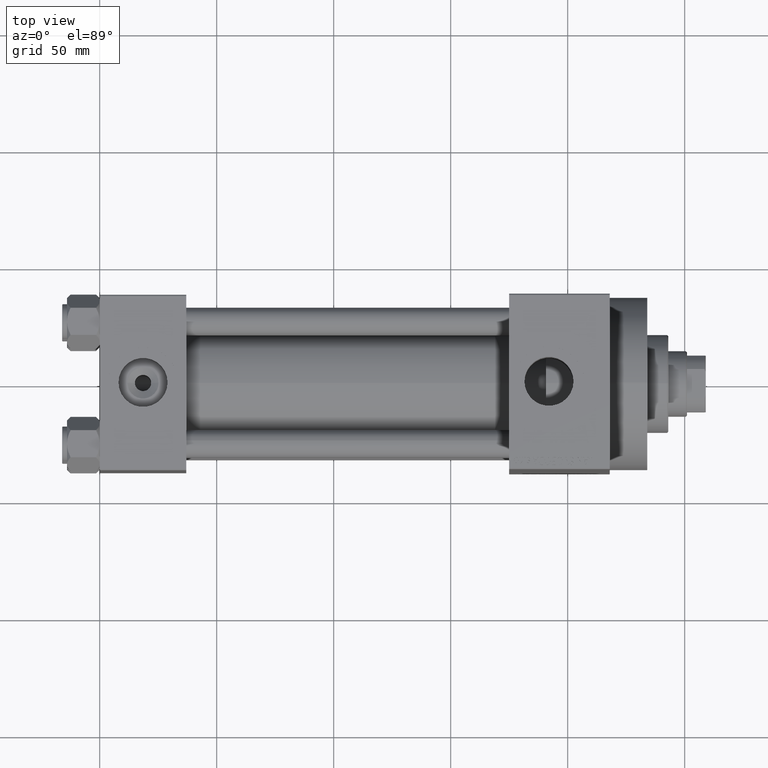
[diagram: clean part render]
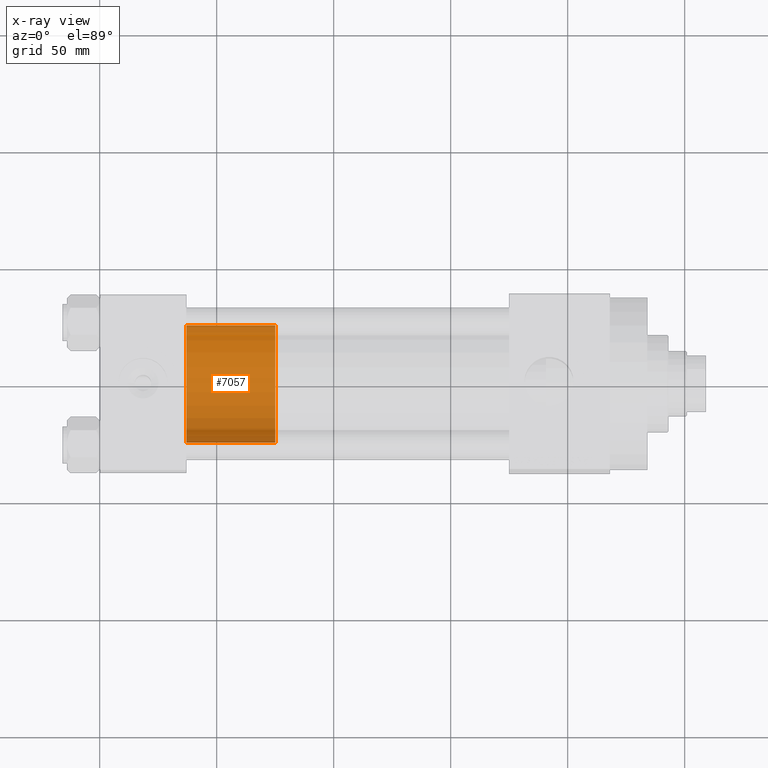
[diagram: x-ray — body ghosted, one internal face saturated and labeled with its STEP entity id]
A machine part, top view, then the same camera in x-ray: the body is ghosted and one INTERNAL B-rep face — a face not visible from any outside direction — is saturated and labeled: STEP entity #7057.
In plain terms, the highlighted cylindrical surface (partial cylindrical patch) has radius 25 mm, axis along (-1, 0, 0).
Its self-contained STEP definition (entity closure, byte-faithful):
#32 = CARTESIAN_POINT ( 'NONE',  ( 25.00000000000000000, 3.061616997868383043E-15, 0.000000000000000000 ) ) ;
#1284 = CARTESIAN_POINT ( 'NONE',  ( 0.000000000000000000, 0.000000000000000000, 38.00000000000000000 ) ) ;
#3666 = ORIENTED_EDGE ( 'NONE', *, *, #27673, .F. ) ;
#6821 = LINE ( 'NONE', #22621, #18559 ) ;
#6998 = VERTEX_POINT ( 'NONE', #19737 ) ;
#7057 = ADVANCED_FACE ( 'NONE', ( #37481 ), #19275, .T. ) ;
#7448 = EDGE_CURVE ( 'NONE', #29959, #6998, #23443, .T. ) ;
#7547 = AXIS2_PLACEMENT_3D ( 'NONE', #42541, #31751, #27445 ) ;
#8232 = DIRECTION ( 'NONE',  ( -0.000000000000000000, -0.000000000000000000, -1.000000000000000000 ) ) ;
#8281 = ORIENTED_EDGE ( 'NONE', *, *, #7448, .F. ) ;
#13479 = EDGE_CURVE ( 'NONE', #21010, #6998, #14112, .T. ) ;
#14112 = CIRCLE ( 'NONE', #28620, 25.00000000000000000 ) ;
#18547 = EDGE_LOOP ( 'NONE', ( #3666, #39938, #30137, #8281 ) ) ;
#18559 = VECTOR ( 'NONE', #8232, 1000.000000000000000 ) ;
#19275 = CYLINDRICAL_SURFACE ( 'NONE', #23849, 25.00000000000000000 ) ;
#19697 = CARTESIAN_POINT ( 'NONE',  ( 0.000000000000000000, 0.000000000000000000, 0.000000000000000000 ) ) ;
#19737 = CARTESIAN_POINT ( 'NONE',  ( -25.00000000000000000, 0.000000000000000000, 0.000000000000000000 ) ) ;
#21010 = VERTEX_POINT ( 'NONE', #32 ) ;
#22621 = CARTESIAN_POINT ( 'NONE',  ( 25.00000000000000000, 3.061616997868383043E-15, 38.00000000000000000 ) ) ;
#22825 = DIRECTION ( 'NONE',  ( 1.000000000000000000, 0.000000000000000000, 0.000000000000000000 ) ) ;
#23443 = LINE ( 'NONE', #33989, #40706 ) ;
#23849 = AXIS2_PLACEMENT_3D ( 'NONE', #1284, #45158, #41550 ) ;
#27445 = DIRECTION ( 'NONE',  ( 1.000000000000000000, 0.000000000000000000, 0.000000000000000000 ) ) ;
#27673 = EDGE_CURVE ( 'NONE', #44858, #29959, #45058, .T. ) ;
#28620 = AXIS2_PLACEMENT_3D ( 'NONE', #19697, #34319, #22825 ) ;
#29959 = VERTEX_POINT ( 'NONE', #40785 ) ;
#30137 = ORIENTED_EDGE ( 'NONE', *, *, #13479, .T. ) ;
#31751 = DIRECTION ( 'NONE',  ( 0.000000000000000000, 0.000000000000000000, 1.000000000000000000 ) ) ;
#33989 = CARTESIAN_POINT ( 'NONE',  ( -25.00000000000000000, 0.000000000000000000, 38.00000000000000000 ) ) ;
#34319 = DIRECTION ( 'NONE',  ( 0.000000000000000000, 0.000000000000000000, 1.000000000000000000 ) ) ;
#34461 = DIRECTION ( 'NONE',  ( -0.000000000000000000, -0.000000000000000000, -1.000000000000000000 ) ) ;
#37481 = FACE_OUTER_BOUND ( 'NONE', #18547, .T. ) ;
#38239 = CARTESIAN_POINT ( 'NONE',  ( 25.00000000000000000, 3.061616997868383043E-15, 38.00000000000000000 ) ) ;
#39938 = ORIENTED_EDGE ( 'NONE', *, *, #45008, .T. ) ;
#40706 = VECTOR ( 'NONE', #34461, 1000.000000000000000 ) ;
#40785 = CARTESIAN_POINT ( 'NONE',  ( -25.00000000000000000, 0.000000000000000000, 38.00000000000000000 ) ) ;
#41550 = DIRECTION ( 'NONE',  ( -1.000000000000000000, 0.000000000000000000, 0.000000000000000000 ) ) ;
#42541 = CARTESIAN_POINT ( 'NONE',  ( 0.000000000000000000, 0.000000000000000000, 38.00000000000000000 ) ) ;
#44858 = VERTEX_POINT ( 'NONE', #38239 ) ;
#45008 = EDGE_CURVE ( 'NONE', #44858, #21010, #6821, .T. ) ;
#45058 = CIRCLE ( 'NONE', #7547, 25.00000000000000000 ) ;
#45158 = DIRECTION ( 'NONE',  ( -0.000000000000000000, -0.000000000000000000, -1.000000000000000000 ) ) ;